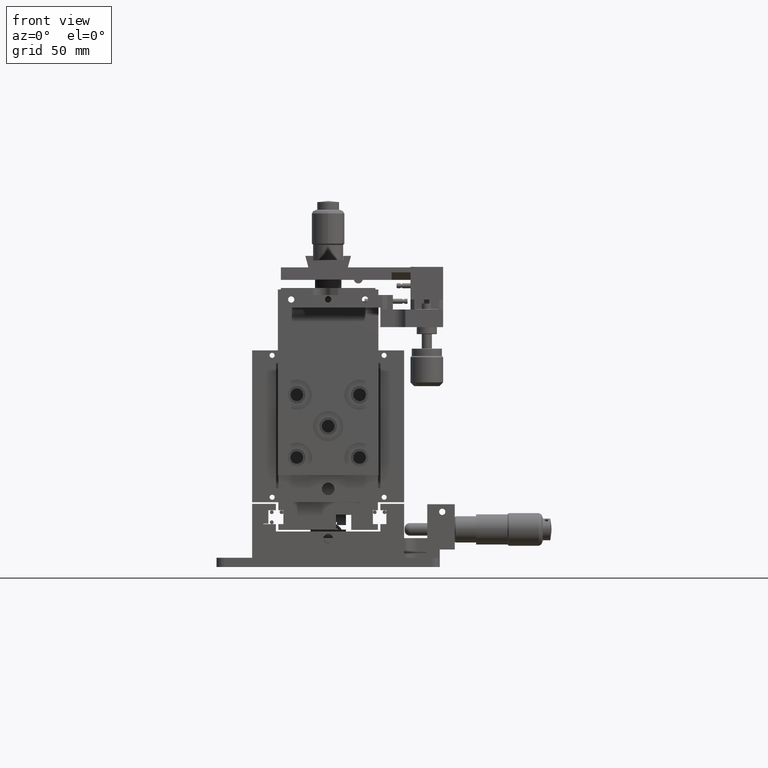
[diagram: clean part render]
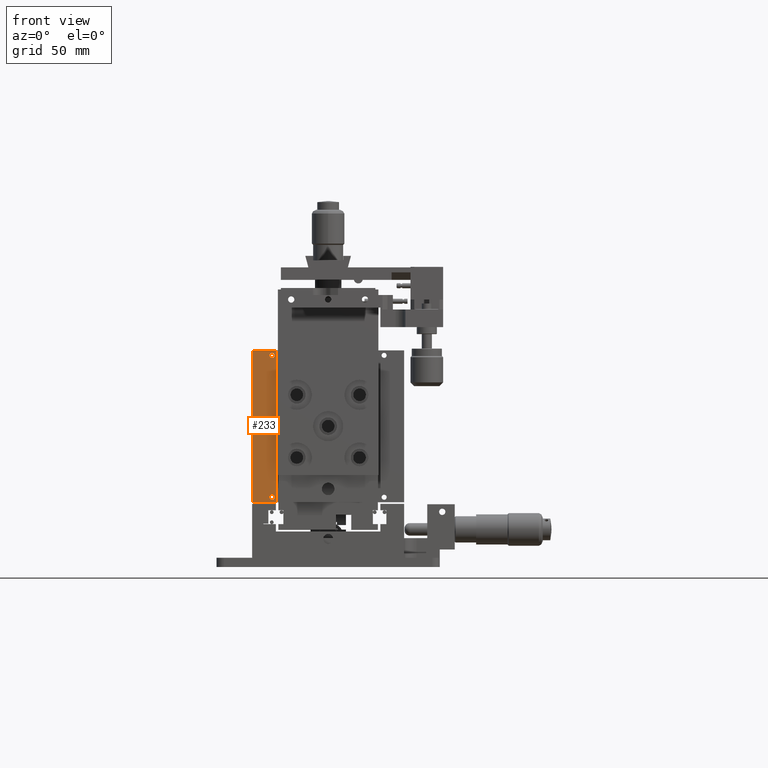
[diagram: same view with one face highlighted and labeled with its STEP entity id]
A machine part, front view. The second image highlights one B-rep face of the part: STEP entity #233.
In plain terms, the highlighted planar face has unit normal (-0, 1, 0).
Its self-contained STEP definition (entity closure, byte-faithful):
#124 = VERTEX_POINT ( 'NONE', #22085 ) ;
#161 = EDGE_CURVE ( 'NONE', #124, #13774, #22069, .T. ) ;
#174 = EDGE_CURVE ( 'NONE', #13551, #13541, #22150, .T. ) ;
#182 = ORIENTED_EDGE ( 'NONE', *, *, #216, .F. ) ;
#185 = EDGE_LOOP ( 'NONE', ( #226, #13783 ) ) ;
#199 = EDGE_LOOP ( 'NONE', ( #228, #213, #212, #182 ) ) ;
#211 = EDGE_CURVE ( 'NONE', #214, #13774, #22226, .T. ) ;
#212 = ORIENTED_EDGE ( 'NONE', *, *, #211, .F. ) ;
#213 = ORIENTED_EDGE ( 'NONE', *, *, #161, .T. ) ;
#214 = VERTEX_POINT ( 'NONE', #22229 ) ;
#216 = EDGE_CURVE ( 'NONE', #13769, #214, #22220, .T. ) ;
#218 = ORIENTED_EDGE ( 'NONE', *, *, #13794, .F. ) ;
#219 = ORIENTED_EDGE ( 'NONE', *, *, #13613, .F. ) ;
#224 = EDGE_LOOP ( 'NONE', ( #218, #219 ) ) ;
#226 = ORIENTED_EDGE ( 'NONE', *, *, #174, .F. ) ;
#228 = ORIENTED_EDGE ( 'NONE', *, *, #13767, .T. ) ;
#233 = ADVANCED_FACE ( 'NONE', ( #22214, #22255, #22247 ), #22252, .F. ) ;
#13541 = VERTEX_POINT ( 'NONE', #22951 ) ;
#13551 = VERTEX_POINT ( 'NONE', #22969 ) ;
#13584 = VERTEX_POINT ( 'NONE', #23036 ) ;
#13595 = EDGE_CURVE ( 'NONE', #13541, #13551, #23016, .T. ) ;
#13613 = EDGE_CURVE ( 'NONE', #13584, #13618, #23097, .T. ) ;
#13618 = VERTEX_POINT ( 'NONE', #23092 ) ;
#13767 = EDGE_CURVE ( 'NONE', #13769, #124, #23378, .T. ) ;
#13769 = VERTEX_POINT ( 'NONE', #23379 ) ;
#13774 = VERTEX_POINT ( 'NONE', #23375 ) ;
#13783 = ORIENTED_EDGE ( 'NONE', *, *, #13595, .F. ) ;
#13794 = EDGE_CURVE ( 'NONE', #13618, #13584, #22911, .T. ) ;
#22068 = CARTESIAN_POINT ( 'NONE',  ( -20.80000000000000100, -43.69999999999998900, 25.79999999999956000 ) ) ;
#22069 = LINE ( 'NONE', #22068, #22110 ) ;
#22085 = CARTESIAN_POINT ( 'NONE',  ( -20.80000000000000100, -43.69999999999998900, 25.79999999999956000 ) ) ;
#22101 = AXIS2_PLACEMENT_3D ( 'NONE', #22156, #22146, #22145 ) ;
#22104 = DIRECTION ( 'NONE',  ( 0.0000000000000000000, -3.445092848397667000E-016, 1.000000000000000000 ) ) ;
#22110 = VECTOR ( 'NONE', #22104, 1000.000000000000000 ) ;
#22145 = DIRECTION ( 'NONE',  ( -1.000000000000000000, 0.0000000000000000000, 0.0000000000000000000 ) ) ;
#22146 = DIRECTION ( 'NONE',  ( 1.224646799147353700E-016, -1.000000000000000000, -3.445092848397667000E-016 ) ) ;
#22150 = CIRCLE ( 'NONE', #22101, 0.9999999999999974500 ) ;
#22156 = CARTESIAN_POINT ( 'NONE',  ( -22.29999999999998600, -43.69999999999998200, 27.79999999999956700 ) ) ;
#22199 = AXIS2_PLACEMENT_3D ( 'NONE', #22245, #22257, #22244 ) ;
#22214 = FACE_BOUND ( 'NONE', #185, .T. ) ;
#22215 = DIRECTION ( 'NONE',  ( 0.0000000000000000000, -3.445092848397667000E-016, 1.000000000000000000 ) ) ;
#22216 = VECTOR ( 'NONE', #22215, 1000.000000000000000 ) ;
#22220 = LINE ( 'NONE', #22228, #22216 ) ;
#22223 = DIRECTION ( 'NONE',  ( 1.000000000000000000, 1.224646799147353700E-016, 4.930380657631323800E-032 ) ) ;
#22224 = VECTOR ( 'NONE', #22223, 1000.000000000000000 ) ;
#22225 = CARTESIAN_POINT ( 'NONE',  ( -30.24999999999999300, -43.70000000000000300, 86.29999999999957100 ) ) ;
#22226 = LINE ( 'NONE', #22225, #22224 ) ;
#22228 = CARTESIAN_POINT ( 'NONE',  ( -30.24999999999999300, -43.69999999999998200, 25.79999999999956700 ) ) ;
#22229 = CARTESIAN_POINT ( 'NONE',  ( -30.24999999999999300, -43.70000000000000300, 86.29999999999957100 ) ) ;
#22244 = DIRECTION ( 'NONE',  ( -1.000000000000000000, -1.224646799147353700E-016, -4.930380657631323800E-032 ) ) ;
#22245 = CARTESIAN_POINT ( 'NONE',  ( -30.24999999999999300, -43.69999999999998200, 25.79999999999956700 ) ) ;
#22247 = FACE_OUTER_BOUND ( 'NONE', #199, .T. ) ;
#22252 = PLANE ( 'NONE',  #22199 ) ;
#22255 = FACE_BOUND ( 'NONE', #224, .T. ) ;
#22257 = DIRECTION ( 'NONE',  ( -1.224646799147353700E-016, 1.000000000000000000, 3.445092848397667000E-016 ) ) ;
#22835 = AXIS2_PLACEMENT_3D ( 'NONE', #22842, #22910, #22909 ) ;
#22842 = CARTESIAN_POINT ( 'NONE',  ( -22.29999999999999400, -43.70000000000000300, 84.29999999999957100 ) ) ;
#22909 = DIRECTION ( 'NONE',  ( 1.000000000000000000, 0.0000000000000000000, 0.0000000000000000000 ) ) ;
#22910 = DIRECTION ( 'NONE',  ( 1.224646799147353700E-016, -1.000000000000000000, -3.445092848397667000E-016 ) ) ;
#22911 = CIRCLE ( 'NONE', #22835, 0.9999999999999974500 ) ;
#22951 = CARTESIAN_POINT ( 'NONE',  ( -23.29999999999998300, -43.69999999999998200, 27.79999999999956700 ) ) ;
#22969 = CARTESIAN_POINT ( 'NONE',  ( -21.29999999999999000, -43.69999999999998200, 27.79999999999956700 ) ) ;
#23014 = AXIS2_PLACEMENT_3D ( 'NONE', #23040, #23068, #23067 ) ;
#23016 = CIRCLE ( 'NONE', #23014, 0.9999999999999974500 ) ;
#23036 = CARTESIAN_POINT ( 'NONE',  ( -23.29999999999999000, -43.70000000000000300, 84.29999999999957100 ) ) ;
#23040 = CARTESIAN_POINT ( 'NONE',  ( -22.29999999999998600, -43.69999999999998200, 27.79999999999956700 ) ) ;
#23067 = DIRECTION ( 'NONE',  ( -1.000000000000000000, 0.0000000000000000000, 0.0000000000000000000 ) ) ;
#23068 = DIRECTION ( 'NONE',  ( 1.224646799147353700E-016, -1.000000000000000000, -3.445092848397667000E-016 ) ) ;
#23092 = CARTESIAN_POINT ( 'NONE',  ( -21.29999999999999700, -43.70000000000000300, 84.29999999999957100 ) ) ;
#23093 = DIRECTION ( 'NONE',  ( 1.000000000000000000, 0.0000000000000000000, 0.0000000000000000000 ) ) ;
#23094 = DIRECTION ( 'NONE',  ( 1.224646799147353700E-016, -1.000000000000000000, -3.445092848397667000E-016 ) ) ;
#23095 = CARTESIAN_POINT ( 'NONE',  ( -22.29999999999999400, -43.70000000000000300, 84.29999999999957100 ) ) ;
#23096 = AXIS2_PLACEMENT_3D ( 'NONE', #23095, #23094, #23093 ) ;
#23097 = CIRCLE ( 'NONE', #23096, 0.9999999999999974500 ) ;
#23372 = DIRECTION ( 'NONE',  ( 1.000000000000000000, 1.224646799147353700E-016, 4.930380657631323800E-032 ) ) ;
#23373 = VECTOR ( 'NONE', #23372, 1000.000000000000000 ) ;
#23374 = CARTESIAN_POINT ( 'NONE',  ( -30.24999999999999300, -43.69999999999998200, 25.79999999999956700 ) ) ;
#23375 = CARTESIAN_POINT ( 'NONE',  ( -20.80000000000000100, -43.70000000000001000, 86.29999999999957100 ) ) ;
#23378 = LINE ( 'NONE', #23374, #23373 ) ;
#23379 = CARTESIAN_POINT ( 'NONE',  ( -30.24999999999999300, -43.69999999999998200, 25.79999999999956700 ) ) ;